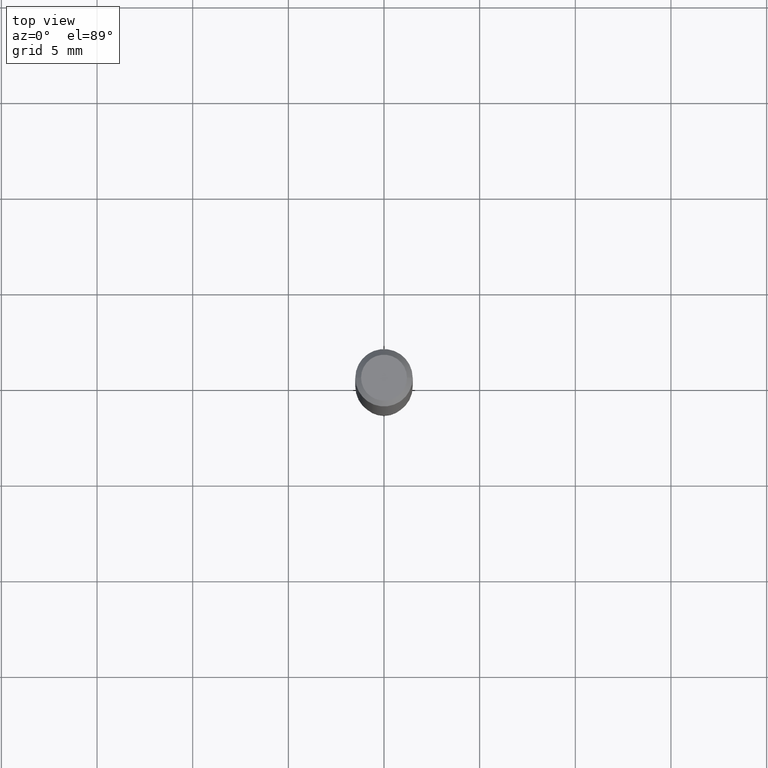
[diagram: clean part render]
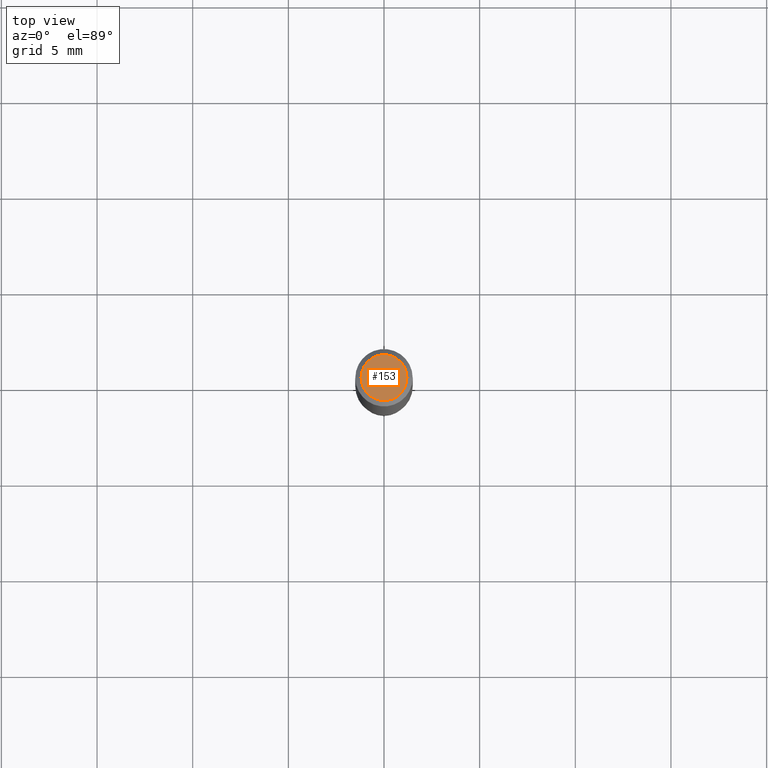
[diagram: same view with one face highlighted and labeled with its STEP entity id]
A machine part, top view. The second image highlights one B-rep face of the part: STEP entity #153.
In plain terms, the highlighted planar face has unit normal (0, -0, -1).
Its self-contained STEP definition (entity closure, byte-faithful):
#2 = DIRECTION ( 'NONE',  ( -2.445468806185136597E-29, 3.491481338843145583E-15, 1.000000000000000000 ) ) ;
#4 = AXIS2_PLACEMENT_3D ( 'NONE', #86, #268, #162 ) ;
#18 = DIRECTION ( 'NONE',  ( -1.000000000000000000, 6.982962677686265922E-15, -4.876176775795935793E-29 ) ) ;
#39 = CARTESIAN_POINT ( 'NONE',  ( -0.04724000000000000421, 3.504923541997677355E-16, -3.380025165670481712E-19 ) ) ;
#86 = CARTESIAN_POINT ( 'NONE',  ( 8.265746106709734507E-48, -1.180129479067563789E-33, -3.380025165646692144E-19 ) ) ;
#92 = AXIS2_PLACEMENT_3D ( 'NONE', #191, #2, #157 ) ;
#102 = PLANE ( 'NONE',  #428 ) ;
#153 = ADVANCED_FACE ( 'NONE', ( #368 ), #102, .F. ) ;
#157 = DIRECTION ( 'NONE',  ( 1.000000000000000000, -6.982962677686266711E-15, 4.876185090822587894E-29 ) ) ;
#162 = DIRECTION ( 'NONE',  ( 1.000000000000000000, -6.982962677686266711E-15, 4.876185090822587894E-29 ) ) ;
#186 = ORIENTED_EDGE ( 'NONE', *, *, #385, .T. ) ;
#191 = CARTESIAN_POINT ( 'NONE',  ( 8.265746106709734507E-48, -1.180129479067563789E-33, -3.380025165646692144E-19 ) ) ;
#268 = DIRECTION ( 'NONE',  ( -2.445468806185136597E-29, 3.491481338843145583E-15, 1.000000000000000000 ) ) ;
#302 = CIRCLE ( 'NONE', #92, 0.04724000000000000421 ) ;
#317 = CARTESIAN_POINT ( 'NONE',  ( 4.132873053354867254E-48, -5.900647395337818946E-34, -1.690012582823346072E-19 ) ) ;
#322 = VERTEX_POINT ( 'NONE', #417 ) ;
#334 = CIRCLE ( 'NONE', #4, 0.04724000000000000421 ) ;
#336 = VERTEX_POINT ( 'NONE', #39 ) ;
#346 = EDGE_CURVE ( 'NONE', #322, #336, #302, .T. ) ;
#368 = FACE_OUTER_BOUND ( 'NONE', #443, .T. ) ;
#385 = EDGE_CURVE ( 'NONE', #336, #322, #334, .T. ) ;
#403 = ORIENTED_EDGE ( 'NONE', *, *, #346, .T. ) ;
#417 = CARTESIAN_POINT ( 'NONE',  ( 0.04724000000000000421, -3.852183633974369345E-16, -3.380025165621689721E-19 ) ) ;
#428 = AXIS2_PLACEMENT_3D ( 'NONE', #317, #466, #18 ) ;
#443 = EDGE_LOOP ( 'NONE', ( #186, #403 ) ) ;
#466 = DIRECTION ( 'NONE',  ( 2.438088387897960049E-29, -3.491481338843145188E-15, -1.000000000000000000 ) ) ;